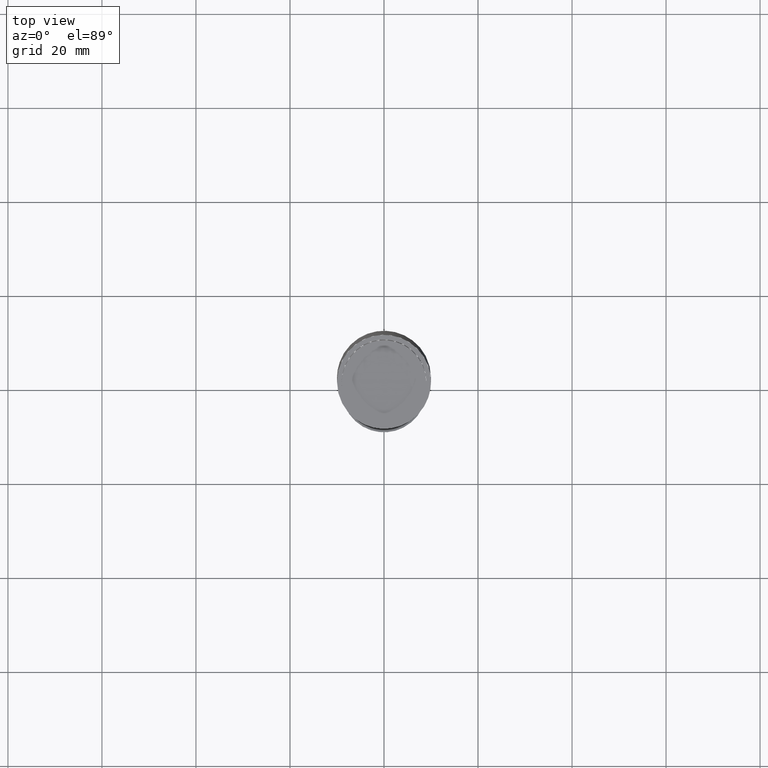
[diagram: clean part render]
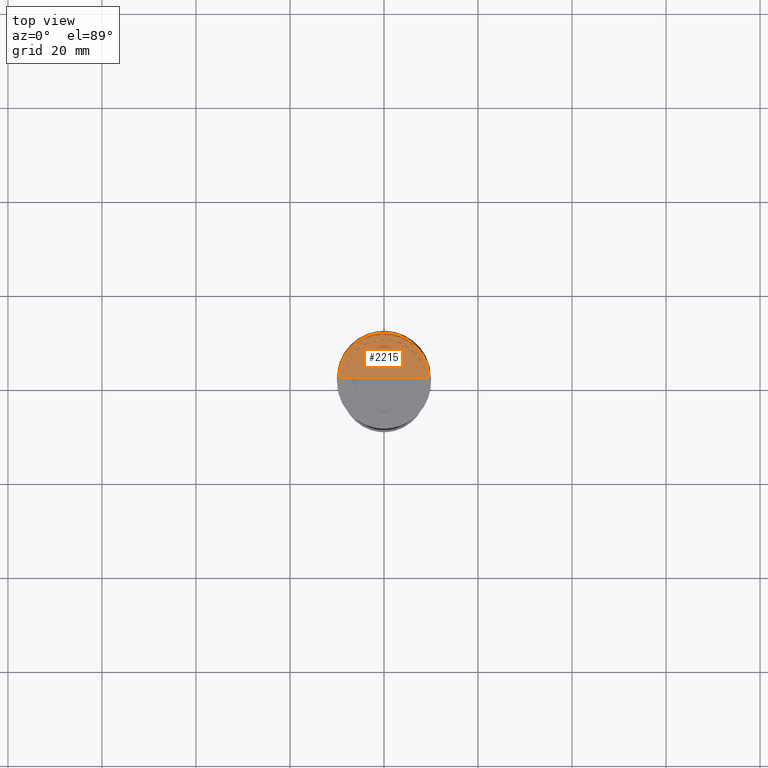
[diagram: same view with one face highlighted and labeled with its STEP entity id]
A machine part, top view. The second image highlights one B-rep face of the part: STEP entity #2215.
In plain terms, the highlighted face is a freeform B-spline surface patch.
Its self-contained STEP definition (entity closure, byte-faithful):
#1950=CARTESIAN_POINT('',(9.5,0.0,50.0));
#1951=CARTESIAN_POINT('',(9.5,9.5,50.0));
#1952=CARTESIAN_POINT('',(0.0,9.5,50.0));
#1953=CARTESIAN_POINT('',(-9.5,9.5,50.0));
#1954=CARTESIAN_POINT('',(-9.5,0.0,50.0));
#1955=CARTESIAN_POINT('',(0.0,0.0,50.0));
#2200=(
BOUNDED_SURFACE()
B_SPLINE_SURFACE(1,2,(
(#1950,#1951,#1952,#1953,#1954),
(#1955,#1955,#1955,#1955,#1955)
), .UNSPECIFIED.,.F.,.F.,.F.)
B_SPLINE_SURFACE_WITH_KNOTS((2,2),(3,2,3),(
0.0,1.0),(
0.0,0.5,1.0), .UNSPECIFIED.)
GEOMETRIC_REPRESENTATION_ITEM()
RATIONAL_B_SPLINE_SURFACE(((1.0,0.707106781187,1.0,0.707106781187,1.0),
(1.0,0.707106781187,1.0,0.707106781187,1.0)
))
REPRESENTATION_ITEM('')
SURFACE()
);
#2201=(
BOUNDED_CURVE()
B_SPLINE_CURVE(2,(#1954,#1953,#1952,#1951,#1950),.UNSPECIFIED.,.F.,.F.)
B_SPLINE_CURVE_WITH_KNOTS((3,2,3),
(0.0,0.5,1.0),.UNSPECIFIED.)
CURVE()
GEOMETRIC_REPRESENTATION_ITEM()
RATIONAL_B_SPLINE_CURVE((1.0,0.707106781187,1.0,0.707106781187,1.0))
REPRESENTATION_ITEM('')
);
#2202=(
BOUNDED_CURVE()
B_SPLINE_CURVE(1,(#1950,#1955),.UNSPECIFIED.,.F.,.F.)
B_SPLINE_CURVE_WITH_KNOTS((2,2),
(0.0,1.0),.UNSPECIFIED.)
CURVE()
GEOMETRIC_REPRESENTATION_ITEM()
RATIONAL_B_SPLINE_CURVE((1.0,1.0))
REPRESENTATION_ITEM('')
);
#2203=(
BOUNDED_CURVE()
B_SPLINE_CURVE(1,(#1955,#1954),.UNSPECIFIED.,.F.,.F.)
B_SPLINE_CURVE_WITH_KNOTS((2,2),
(0.0,1.0),.UNSPECIFIED.)
CURVE()
GEOMETRIC_REPRESENTATION_ITEM()
RATIONAL_B_SPLINE_CURVE((1.0,1.0))
REPRESENTATION_ITEM('')
);
#2204=VERTEX_POINT('',#1950);
#2205=VERTEX_POINT('',#1954);
#2206=VERTEX_POINT('',#1955);
#2207=EDGE_CURVE('',#2205,#2204,#2201,.T.);
#2208=EDGE_CURVE('',#2204,#2206,#2202,.T.);
#2209=EDGE_CURVE('',#2206,#2205,#2203,.T.);
#2210=ORIENTED_EDGE('',*,*,#2207,.T.);
#2211=ORIENTED_EDGE('',*,*,#2208,.T.);
#2212=ORIENTED_EDGE('',*,*,#2209,.T.);
#2213=EDGE_LOOP('',(#2210,#2211,#2212));
#2214=FACE_OUTER_BOUND('',#2213,.T.);
#2215=ADVANCED_FACE('',(#2214),#2200,.T.);